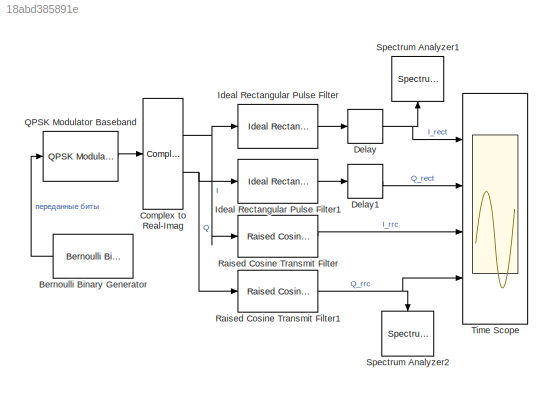
MODEL slx_18abd385891e
KIND model
CONFIG AbsTol = auto
CONFIG EnableMultiTasking = off
CONFIG FixedStep = auto
CONFIG MaxStep = auto
CONFIG MinStep = auto
CONFIG PreLoadFcn = Rb=1e6; % битовая скорость
CONFIG RelTol = 1e-3
CONFIG SampleTimeConstraint = Unconstrained
CONFIG Solver = VariableStepAuto
CONFIG SolverName = VariableStepAuto
CONFIG StartTime = 0.0
CONFIG StopTime = 200/Rb
BLOCK [Reference] Bernoulli Binary Generator  REF=commrandsrc3/Bernoulli Binary
Generator
  Ports = [0, 1]
  SourceBlock = commrandsrc3/Bernoulli Binary\nGenerator
  SourceProductBaseCode = CM
  SourceProductName = Communications System Toolbox
  SourceType = Bernoulli Binary Generator
BLOCK [ComplexToRealImag] Complex to Real-Imag
  Ports = [1, 2]
BLOCK [Delay] Delay
  DelayLength = 4
  InitialCondition = 0
  InputPortMap = u0
  Ports = [1, 1]
BLOCK [Delay] Delay1
  DelayLength = 4
  InitialCondition = 0
  InputPortMap = u0
  Ports = [1, 1]
BLOCK [Reference] Ideal Rectangular Pulse Filter  REF=commfilt2/Ideal Rectangular
Pulse Filter
  Ports = [1, 1]
  SourceBlock = commfilt2/Ideal Rectangular\nPulse Filter
  SourceProductBaseCode = CM
  SourceProductName = Communications System Toolbox
  SourceType = Ideal Rectangular Pulse Filter
  UserDataPersistent = on
BLOCK [Reference] Ideal Rectangular Pulse Filter1  REF=commfilt2/Ideal Rectangular
Pulse Filter
  Ports = [1, 1]
  SourceBlock = commfilt2/Ideal Rectangular\nPulse Filter
  SourceProductBaseCode = CM
  SourceProductName = Communications System Toolbox
  SourceType = Ideal Rectangular Pulse Filter
  UserDataPersistent = on
BLOCK [Reference] QPSK Modulator Baseband  REF=commdigbbndpm3/QPSK
Modulator
Baseband
  Ports = [1, 1]
  SourceBlock = commdigbbndpm3/QPSK\nModulator\nBaseband
  SourceProductBaseCode = CM
  SourceProductName = Communications System Toolbox
  SourceType = QPSK Modulator Baseband
BLOCK [Reference] Raised Cosine Transmit Filter  REF=commfilt2/Raised Cosine
Transmit Filter
  Ports = [1, 1]
  SourceBlock = commfilt2/Raised Cosine\nTransmit Filter
  SourceProductBaseCode = CM
  SourceProductName = Communications System Toolbox
  SourceType = Raised Cosine Transmit Filter
BLOCK [Reference] Raised Cosine Transmit Filter1  REF=commfilt2/Raised Cosine
Transmit Filter
  Ports = [1, 1]
  SourceBlock = commfilt2/Raised Cosine\nTransmit Filter
  SourceProductBaseCode = CM
  SourceProductName = Communications System Toolbox
  SourceType = Raised Cosine Transmit Filter
BLOCK [SpectrumAnalyzer] Spectrum Analyzer1
  Ports = [1]
  ScopeSpecificationString = spbscopes.SpectrumAnalyzerBlockCfg('CurrentConfiguration', extmgr.ConfigurationSet(extmgr.Configuration('Core','General UI',true,'FigureColor',[1 1 1]),extmgr.Configuration('Core','Source UI',true),extmgr.Configuration('Sources','WiredSimulink',true),extmgr.Configuration('Sources','SimulinkEvent',false),extmgr.Configuration('Sources','Simulink',false),extmgr.Configuration('Sources','SPTool',false)...<+3803ch>
BLOCK [SpectrumAnalyzer] Spectrum Analyzer2
  Ports = [1]
  ScopeSpecificationString = spbscopes.SpectrumAnalyzerBlockCfg('CurrentConfiguration', extmgr.ConfigurationSet(extmgr.Configuration('Core','General UI',true,'FigureColor',[1 1 1]),extmgr.Configuration('Core','Source UI',true),extmgr.Configuration('Sources','WiredSimulink',true),extmgr.Configuration('Visuals','Spectrum',true,'AxesProperties',struct('Color',{[1 1 1],[1 1 1]},'XColor',{[0 0 0],[0 0 0]},'YColor',{[0 0 0],[0 0 0]...<+2216ch>
BLOCK [Scope] Time Scope
  DefaultConfigurationName = spbscopes.TimeScopeBlockCfg
  Floating = off
  NumInputPorts = 4
  Ports = [4]
  ScopeSpecificationString = spbscopes.TimeScopeBlockCfg('CurrentConfiguration', extmgr.ConfigurationSet(extmgr.Configuration('Core','General UI',true,'FigureColor',[1 1 1]),extmgr.Configuration('Core','Source UI',true),extmgr.Configuration('Sources','WiredSimulink',true),extmgr.Configuration('Visuals','Time Domain',true,'DisplayLayoutDimensions',[4 1],'DisplayPropertyDefaults',struct('YLabelReal','Amplitude','XGrid',true,'YG...<+5626ch>
  UserDataPersistent = on
LINE Bernoulli Binary Generator:1 -> QPSK Modulator Baseband:1
NET Complex to Real-Imag:1 -> Ideal Rectangular Pulse Filter:1, Raised Cosine Transmit Filter:1
NET Complex to Real-Imag:2 -> Ideal Rectangular Pulse Filter1:1, Raised Cosine Transmit Filter1:1
LINE Delay1:1 -> Time Scope:2
NET Delay:1 -> Spectrum Analyzer1:1, Time Scope:1
LINE Ideal Rectangular Pulse Filter1:1 -> Delay1:1
LINE Ideal Rectangular Pulse Filter:1 -> Delay:1
LINE QPSK Modulator Baseband:1 -> Complex to Real-Imag:1
NET Raised Cosine Transmit Filter1:1 -> Spectrum Analyzer2:1, Time Scope:4
LINE Raised Cosine Transmit Filter:1 -> Time Scope:3
note: NET lines group one-source signal fan-out (src -> all destinations, sorted); 1:1 wires keep LINE
